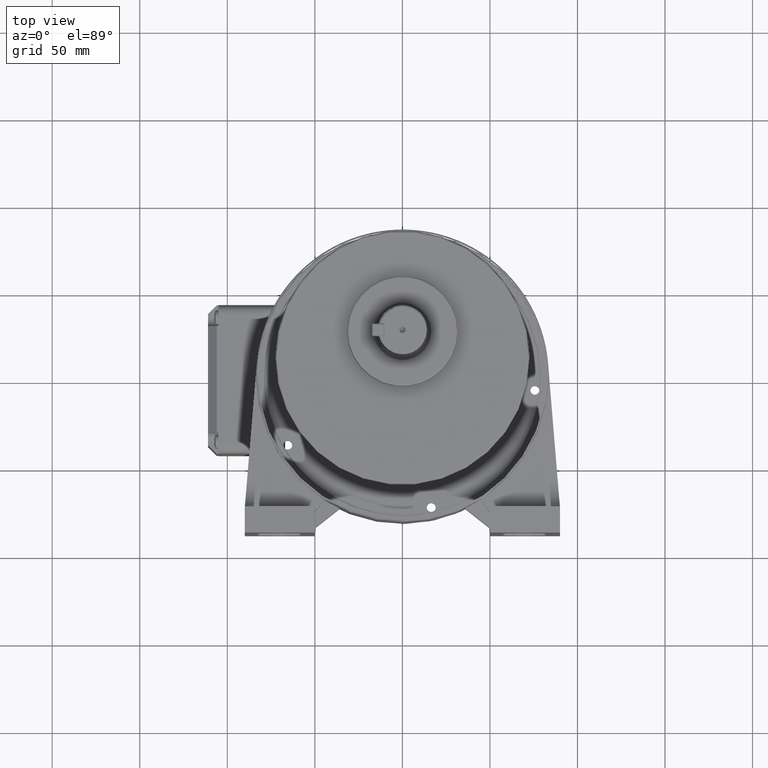
[diagram: clean part render]
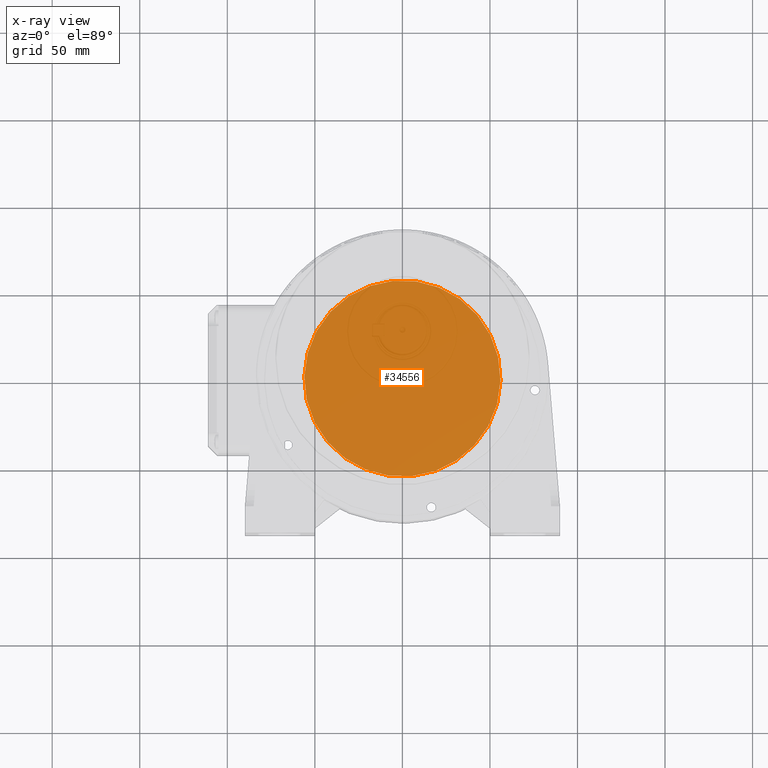
[diagram: x-ray — body ghosted, one internal face saturated and labeled with its STEP entity id]
A machine part, top view, then the same camera in x-ray: the body is ghosted and one INTERNAL B-rep face — a face not visible from any outside direction — is saturated and labeled: STEP entity #34556.
In plain terms, the highlighted planar face has unit normal (0, 0, -1).
Its self-contained STEP definition (entity closure, byte-faithful):
#26837 = CIRCLE ( 'NONE', #27361, 56.00000000000000000 ) ;
#27333 = DIRECTION ( 'NONE',  ( -1.000000000000000000, 0.0000000000000000000, 0.0000000000000000000 ) ) ;
#27343 = CARTESIAN_POINT ( 'NONE',  ( 0.0000000000000000000, -0.005117605186732987500, -36.50000000000001400 ) ) ;
#27356 = DIRECTION ( 'NONE',  ( 0.0000000000000000000, 0.0000000000000000000, -1.000000000000000000 ) ) ;
#27361 = AXIS2_PLACEMENT_3D ( 'NONE', #27343, #27356, #27333 ) ;
#27765 = CARTESIAN_POINT ( 'NONE',  ( 56.00000000000000000, -0.005117605186726129200, -36.50000000000001400 ) ) ;
#27869 = CARTESIAN_POINT ( 'NONE',  ( -56.00000000000000000, -0.005117605186732987500, -36.50000000000001400 ) ) ;
#27894 = DIRECTION ( 'NONE',  ( -1.000000000000000000, 0.0000000000000000000, 0.0000000000000000000 ) ) ;
#27895 = DIRECTION ( 'NONE',  ( 0.0000000000000000000, 0.0000000000000000000, -1.000000000000000000 ) ) ;
#27896 = CARTESIAN_POINT ( 'NONE',  ( 0.0000000000000000000, -0.005117605186732987500, -36.50000000000001400 ) ) ;
#27904 = CIRCLE ( 'NONE', #27919, 56.00000000000000000 ) ;
#27919 = AXIS2_PLACEMENT_3D ( 'NONE', #27896, #27895, #27894 ) ;
#30037 = CARTESIAN_POINT ( 'NONE',  ( 0.0000000000000000000, 0.0000000000000000000, -36.50000000000001400 ) ) ;
#30039 = FACE_OUTER_BOUND ( 'NONE', #34632, .T. ) ;
#30060 = PLANE ( 'NONE',  #30065 ) ;
#30065 = AXIS2_PLACEMENT_3D ( 'NONE', #30037, #30101, #30100 ) ;
#30100 = DIRECTION ( 'NONE',  ( -1.000000000000000000, 0.0000000000000000000, -0.0000000000000000000 ) ) ;
#30101 = DIRECTION ( 'NONE',  ( 0.0000000000000000000, 0.0000000000000000000, -1.000000000000000000 ) ) ;
#33293 = VERTEX_POINT ( 'NONE', #27765 ) ;
#33321 = EDGE_CURVE ( 'NONE', #33337, #33293, #26837, .T. ) ;
#33337 = VERTEX_POINT ( 'NONE', #27869 ) ;
#33353 = EDGE_CURVE ( 'NONE', #33293, #33337, #27904, .T. ) ;
#34556 = ADVANCED_FACE ( 'NONE', ( #30039 ), #30060, .T. ) ;
#34559 = ORIENTED_EDGE ( 'NONE', *, *, #33353, .T. ) ;
#34568 = ORIENTED_EDGE ( 'NONE', *, *, #33321, .T. ) ;
#34632 = EDGE_LOOP ( 'NONE', ( #34568, #34559 ) ) ;